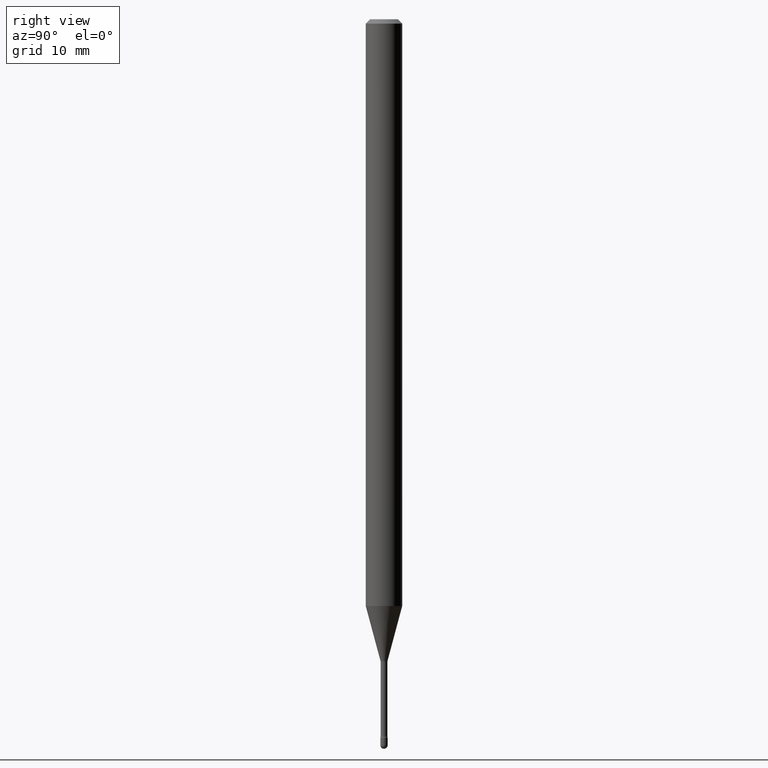
[diagram: clean part render]
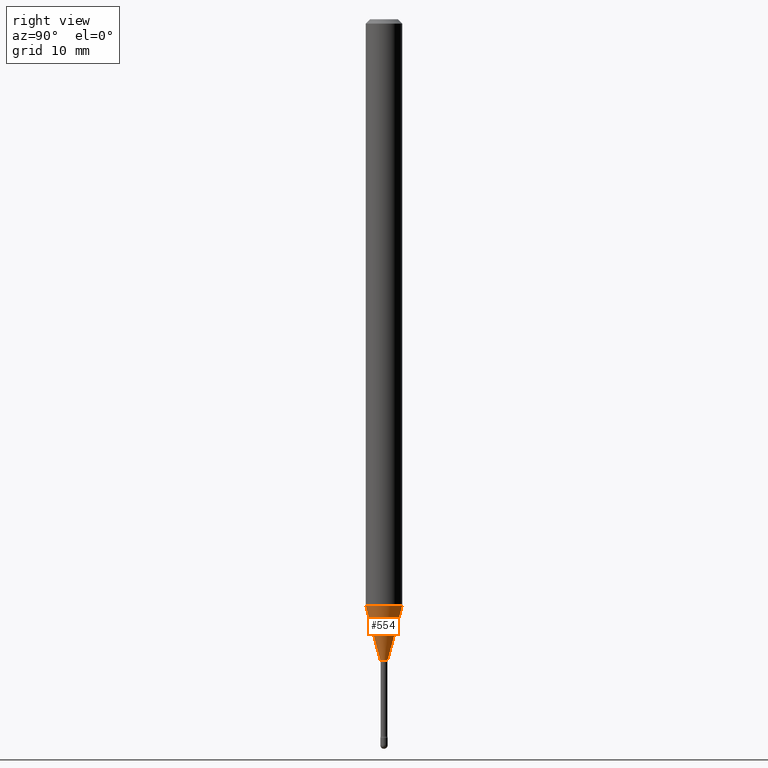
[diagram: same view with one face highlighted and labeled with its STEP entity id]
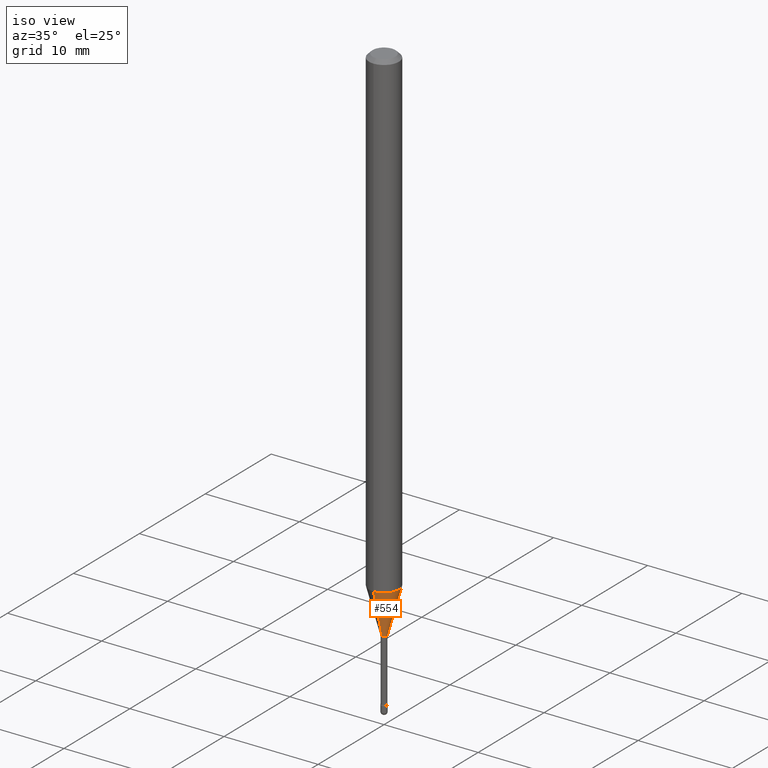
[diagram: same view with one face highlighted and labeled with its STEP entity id]
A machine part, right view. The second image highlights one B-rep face of the part: STEP entity #554.
A second angle (iso view) of the same face is appended — the face is thin or edge-on in the first view.
In plain terms, the highlighted conical surface has half-angle 15 deg.
Its self-contained STEP definition (entity closure, byte-faithful):
#6 = ORIENTED_EDGE ( 'NONE', *, *, #268, .T. ) ;
#10 = DIRECTION ( 'NONE',  ( -2.445406232005474287E-29, 3.491570948629923223E-15, 1.000000000000000000 ) ) ;
#36 = DIRECTION ( 'NONE',  ( -1.807323732225325406E-15, -0.2588190451025175198, 0.9659258262890690894 ) ) ;
#49 = LINE ( 'NONE', #93, #385 ) ;
#52 = CONICAL_SURFACE ( 'NONE', #564, 0.01226111260566398187, 0.2617993877991495744 ) ;
#55 = EDGE_LOOP ( 'NONE', ( #6, #83, #259, #448 ) ) ;
#68 = DIRECTION ( 'NONE',  ( -2.445406232005474287E-29, 3.491570948629923223E-15, 1.000000000000000000 ) ) ;
#77 = VERTEX_POINT ( 'NONE', #142 ) ;
#83 = ORIENTED_EDGE ( 'NONE', *, *, #301, .T. ) ;
#90 = DIRECTION ( 'NONE',  ( -2.445406232005474287E-29, 3.491570948629923223E-15, 1.000000000000000000 ) ) ;
#93 = CARTESIAN_POINT ( 'NONE',  ( 8.712044494296510252E-17, 0.01226111260565630572, -2.198092501787273001 ) ) ;
#101 = VERTEX_POINT ( 'NONE', #333 ) ;
#142 = CARTESIAN_POINT ( 'NONE',  ( 2.656048273965385606E-16, 0.01226111260565630572, -2.198092501787273001 ) ) ;
#252 = AXIS2_PLACEMENT_3D ( 'NONE', #263, #90, #310 ) ;
#258 = LINE ( 'NONE', #438, #317 ) ;
#259 = ORIENTED_EDGE ( 'NONE', *, *, #404, .F. ) ;
#263 = CARTESIAN_POINT ( 'NONE',  ( 4.916729910035301383E-29, -7.020147037926026338E-15, -2.010598421515879419 ) ) ;
#268 = EDGE_CURVE ( 'NONE', #362, #77, #541, .T. ) ;
#301 = EDGE_CURVE ( 'NONE', #77, #321, #49, .T. ) ;
#306 = DIRECTION ( 'NONE',  ( 1.839019923739595582E-15, 0.2588190451025242922, 0.9659258262890673130 ) ) ;
#308 = CARTESIAN_POINT ( 'NONE',  ( 4.440892098501117228E-16, 0.06249999999999298478, -2.010598421515879863 ) ) ;
#310 = DIRECTION ( 'NONE',  ( -6.982962677686265922E-15, -1.000000000000000000, 4.370956789862821150E-15 ) ) ;
#317 = VECTOR ( 'NONE', #36, 39.37007874015748854 ) ;
#321 = VERTEX_POINT ( 'NONE', #308 ) ;
#331 = FACE_OUTER_BOUND ( 'NONE', #55, .T. ) ;
#333 = CARTESIAN_POINT ( 'NONE',  ( -4.364351673553424642E-16, -0.06250000000000702216, -2.010598421515879419 ) ) ;
#336 = CARTESIAN_POINT ( 'NONE',  ( 5.375229102395102351E-29, -7.674795921641710989E-15, -2.198092501787273001 ) ) ;
#348 = EDGE_CURVE ( 'NONE', #362, #101, #258, .T. ) ;
#362 = VERTEX_POINT ( 'NONE', #398 ) ;
#385 = VECTOR ( 'NONE', #306, 39.37007874015748854 ) ;
#398 = CARTESIAN_POINT ( 'NONE',  ( -8.561889171220642469E-17, -0.01226111260567165628, -2.198092501787273001 ) ) ;
#403 = DIRECTION ( 'NONE',  ( -6.982962677686265133E-15, -1.000000000000000000, 0.000000000000000000 ) ) ;
#404 = EDGE_CURVE ( 'NONE', #101, #321, #503, .T. ) ;
#428 = DIRECTION ( 'NONE',  ( -6.982962677686265133E-15, -1.000000000000000000, 0.000000000000000000 ) ) ;
#433 = AXIS2_PLACEMENT_3D ( 'NONE', #527, #10, #403 ) ;
#438 = CARTESIAN_POINT ( 'NONE',  ( -8.561889171220642469E-17, -0.01226111260567165628, -2.198092501787273001 ) ) ;
#448 = ORIENTED_EDGE ( 'NONE', *, *, #348, .F. ) ;
#503 = CIRCLE ( 'NONE', #252, 0.06250000000000000000 ) ;
#527 = CARTESIAN_POINT ( 'NONE',  ( 5.375229102395102351E-29, -7.674795921641710989E-15, -2.198092501787273001 ) ) ;
#541 = CIRCLE ( 'NONE', #433, 0.01226111260566398187 ) ;
#554 = ADVANCED_FACE ( 'NONE', ( #331 ), #52, .T. ) ;
#564 = AXIS2_PLACEMENT_3D ( 'NONE', #336, #68, #428 ) ;